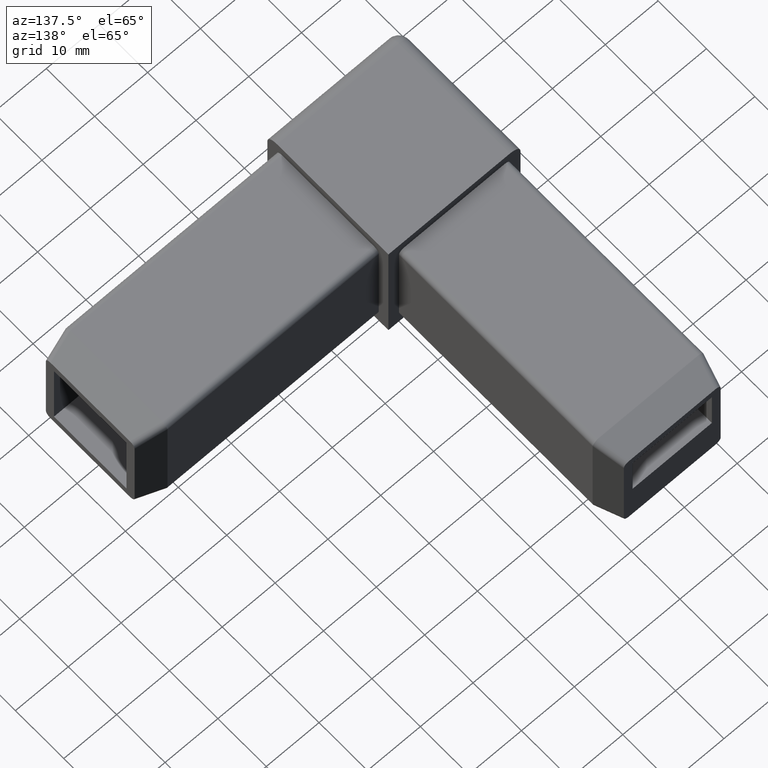
[diagram: clean part render]
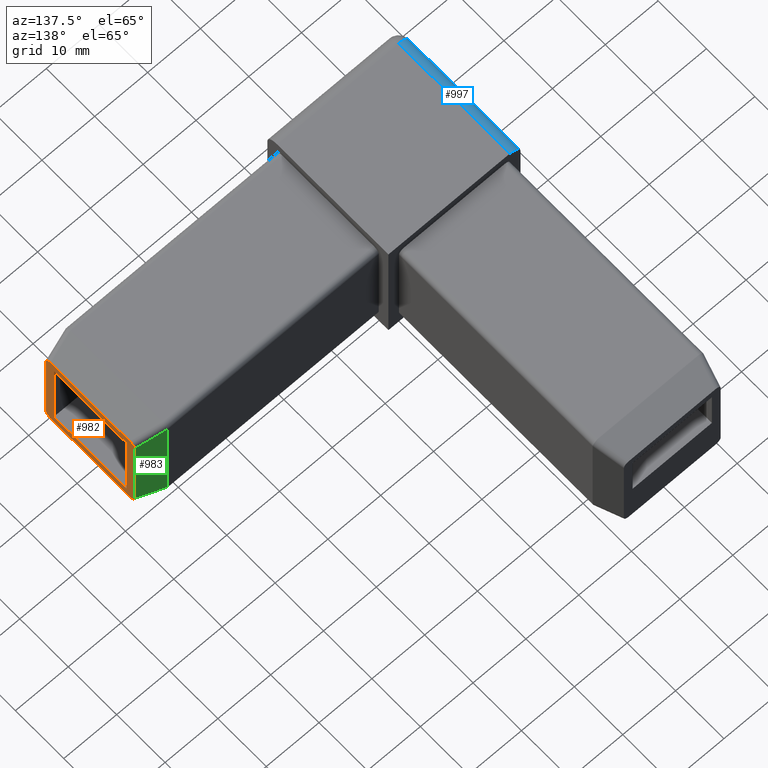
[diagram: same view with three faces highlighted in distinct colors, each labeled with its STEP entity id]
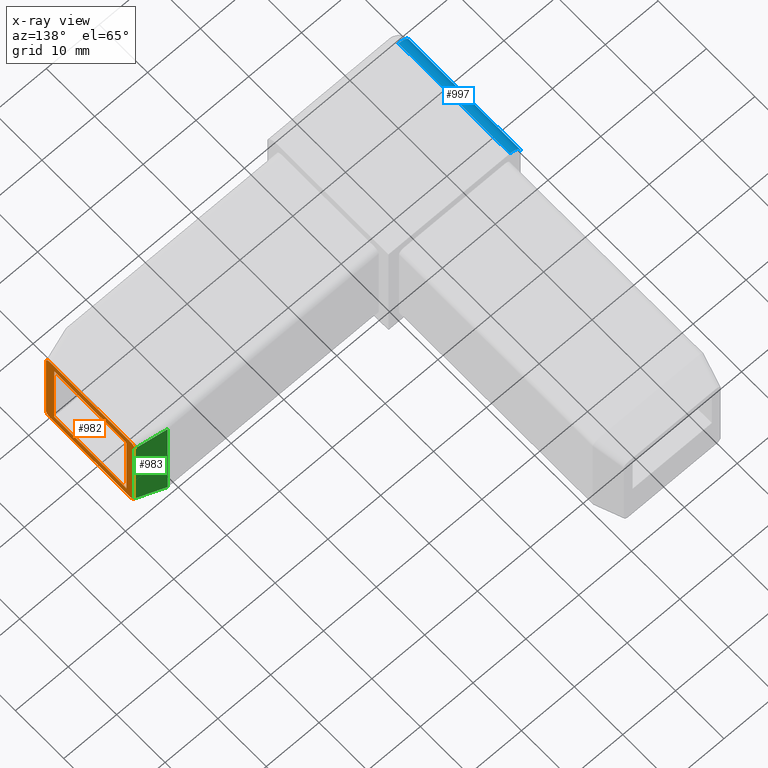
[diagram: x-ray of the same camera — body ghosted, the three highlighted faces saturated]
A machine part, auxiliary view with three faces highlighted in distinct colors.
The next image is the same camera in x-ray (body ghosted, the three faces saturated) — at least one of them is partly hidden behind the body in this view.
Their STEP definitions:

[orange] entity #982 — the highlighted planar face has unit normal (1, 0, 0).
#18=FACE_BOUND('',#174,.T.);
#55=ELLIPSE('',#1058,1.06938933015482,1.);
#59=ELLIPSE('',#1065,1.06938933015482,1.);
#60=ELLIPSE('',#1066,1.06938933015482,1.);
#61=ELLIPSE('',#1067,1.06938933015482,1.);
#117=FACE_OUTER_BOUND('',#173,.T.);
#173=EDGE_LOOP('',(#763,#764,#765,#766,#767,#768,#769,#770));
#174=EDGE_LOOP('',(#771,#772,#773,#774));
#218=LINE('',#1453,#313);
#223=LINE('',#1464,#318);
#226=LINE('',#1468,#321);
#227=LINE('',#1470,#322);
#258=LINE('',#1585,#353);
#259=LINE('',#1589,#354);
#260=LINE('',#1593,#355);
#261=LINE('',#1596,#356);
#313=VECTOR('',#1141,15.);
#318=VECTOR('',#1150,15.);
#321=VECTOR('',#1155,15.);
#322=VECTOR('',#1158,15.);
#353=VECTOR('',#1275,16.3886564231106);
#354=VECTOR('',#1278,16.3886564231106);
#355=VECTOR('',#1281,16.3886564231106);
#356=VECTOR('',#1284,16.3886564231106);
#404=VERTEX_POINT('',#1450);
#405=VERTEX_POINT('',#1452);
#408=VERTEX_POINT('',#1462);
#409=VERTEX_POINT('',#1463);
#443=VERTEX_POINT('',#1566);
#444=VERTEX_POINT('',#1568);
#450=VERTEX_POINT('',#1584);
#451=VERTEX_POINT('',#1586);
#452=VERTEX_POINT('',#1588);
#453=VERTEX_POINT('',#1590);
#454=VERTEX_POINT('',#1592);
#455=VERTEX_POINT('',#1594);
#502=EDGE_CURVE('',#405,#404,#218,.T.);
#507=EDGE_CURVE('',#408,#409,#223,.T.);
#510=EDGE_CURVE('',#409,#405,#226,.T.);
#511=EDGE_CURVE('',#404,#408,#227,.T.);
#559=EDGE_CURVE('',#443,#444,#55,.T.);
#567=EDGE_CURVE('',#450,#443,#258,.T.);
#568=EDGE_CURVE('',#451,#450,#59,.T.);
#569=EDGE_CURVE('',#452,#451,#259,.T.);
#570=EDGE_CURVE('',#453,#452,#60,.T.);
#571=EDGE_CURVE('',#454,#453,#260,.T.);
#572=EDGE_CURVE('',#455,#454,#61,.T.);
#573=EDGE_CURVE('',#444,#455,#261,.T.);
#763=ORIENTED_EDGE('',*,*,#559,.F.);
#764=ORIENTED_EDGE('',*,*,#567,.F.);
#765=ORIENTED_EDGE('',*,*,#568,.F.);
#766=ORIENTED_EDGE('',*,*,#569,.F.);
#767=ORIENTED_EDGE('',*,*,#570,.F.);
#768=ORIENTED_EDGE('',*,*,#571,.F.);
#769=ORIENTED_EDGE('',*,*,#572,.F.);
#770=ORIENTED_EDGE('',*,*,#573,.F.);
#771=ORIENTED_EDGE('',*,*,#502,.T.);
#772=ORIENTED_EDGE('',*,*,#511,.T.);
#773=ORIENTED_EDGE('',*,*,#507,.T.);
#774=ORIENTED_EDGE('',*,*,#510,.T.);
#940=PLANE('',#1064);
#982=ADVANCED_FACE('',(#117,#18),#940,.T.);
#1058=AXIS2_PLACEMENT_3D('',#1569,#1258,#1259);
#1064=AXIS2_PLACEMENT_3D('',#1583,#1273,#1274);
#1065=AXIS2_PLACEMENT_3D('',#1587,#1276,#1277);
#1066=AXIS2_PLACEMENT_3D('',#1591,#1279,#1280);
#1067=AXIS2_PLACEMENT_3D('',#1595,#1282,#1283);
#1141=DIRECTION('',(0.,1.,1.8503717077086E-16));
#1150=DIRECTION('',(0.,-1.,-2.96059473233375E-16));
#1155=DIRECTION('',(0.,2.96059473233375E-16,1.));
#1158=DIRECTION('',(0.,2.96059473233375E-16,-1.));
#1258=DIRECTION('center_axis',(-1.,0.,0.));
#1259=DIRECTION('ref_axis',(0.,0.707106781186546,-0.707106781186549));
#1273=DIRECTION('center_axis',(1.,0.,0.));
#1274=DIRECTION('ref_axis',(0.,0.,-1.));
#1275=DIRECTION('',(0.,0.,-1.));
#1276=DIRECTION('center_axis',(-1.,0.,0.));
#1277=DIRECTION('ref_axis',(0.,0.707106781186548,0.707106781186547));
#1278=DIRECTION('',(0.,1.,0.));
#1279=DIRECTION('center_axis',(-1.,0.,0.));
#1280=DIRECTION('ref_axis',(0.,-0.707106781186548,0.707106781186547));
#1281=DIRECTION('',(0.,0.,1.));
#1282=DIRECTION('center_axis',(-1.,0.,0.));
#1283=DIRECTION('ref_axis',(0.,-0.707106781186548,-0.707106781186547));
#1284=DIRECTION('',(0.,-1.,0.));
#1450=CARTESIAN_POINT('',(57.5,7.5,20.));
#1452=CARTESIAN_POINT('',(57.5,-7.49999999999999,20.));
#1453=CARTESIAN_POINT('',(57.5,3.75,20.));
#1462=CARTESIAN_POINT('',(57.5,7.5,5.));
#1463=CARTESIAN_POINT('',(57.5,-7.5,4.99999999999999));
#1464=CARTESIAN_POINT('',(57.5,-3.75,4.99999999999999));
#1468=CARTESIAN_POINT('',(57.5,-7.49999999999999,16.25));
#1470=CARTESIAN_POINT('',(57.5,7.5,8.75));
#1566=CARTESIAN_POINT('',(57.5,9.16025403784439,4.30567178844468));
#1568=CARTESIAN_POINT('',(57.5,8.19432821155533,3.33974596215561));
#1569=CARTESIAN_POINT('Origin',(57.5,8.12497785743431,4.3750221425657));
#1583=CARTESIAN_POINT('Origin',(57.5,0.,12.5));
#1584=CARTESIAN_POINT('',(57.5,9.16025403784439,20.6943282115553));
#1585=CARTESIAN_POINT('',(57.5,9.16025403784439,7.25));
#1586=CARTESIAN_POINT('',(57.5,8.19432821155532,21.6602540378444));
#1587=CARTESIAN_POINT('Origin',(57.5,8.12497785743431,20.6249778574343));
#1588=CARTESIAN_POINT('',(57.5,-8.19432821155532,21.6602540378444));
#1589=CARTESIAN_POINT('',(57.5,5.25,21.6602540378444));
#1590=CARTESIAN_POINT('',(57.5,-9.16025403784439,20.6943282115553));
#1591=CARTESIAN_POINT('Origin',(57.5,-8.12497785743431,20.6249778574343));
#1592=CARTESIAN_POINT('',(57.5,-9.16025403784439,4.30567178844468));
#1593=CARTESIAN_POINT('',(57.5,-9.16025403784439,17.75));
#1594=CARTESIAN_POINT('',(57.5,-8.19432821155532,3.33974596215561));
#1595=CARTESIAN_POINT('Origin',(57.5,-8.12497785743431,4.3750221425657));
#1596=CARTESIAN_POINT('',(57.5,-5.25,3.33974596215561));

[blue] entity #997 — the highlighted cylindrical surface (edge-blend (fillet) strip) has radius 2 mm, axis along (-0, -1, 0).
#29=CIRCLE('',#1095,2.);
#30=CIRCLE('',#1096,2.);
#87=CYLINDRICAL_SURFACE('',#1094,2.);
#132=FACE_OUTER_BOUND('',#189,.T.);
#189=EDGE_LOOP('',(#847,#848,#849,#850));
#282=LINE('',#1666,#377);
#283=LINE('',#1669,#378);
#377=VECTOR('',#1361,23.);
#378=VECTOR('',#1364,23.);
#474=VERTEX_POINT('',#1662);
#475=VERTEX_POINT('',#1663);
#476=VERTEX_POINT('',#1665);
#477=VERTEX_POINT('',#1667);
#606=EDGE_CURVE('',#474,#475,#29,.T.);
#607=EDGE_CURVE('',#475,#476,#282,.T.);
#608=EDGE_CURVE('',#476,#477,#30,.T.);
#609=EDGE_CURVE('',#477,#474,#283,.T.);
#847=ORIENTED_EDGE('',*,*,#606,.T.);
#848=ORIENTED_EDGE('',*,*,#607,.T.);
#849=ORIENTED_EDGE('',*,*,#608,.T.);
#850=ORIENTED_EDGE('',*,*,#609,.T.);
#997=ADVANCED_FACE('',(#132),#87,.T.);
#1094=AXIS2_PLACEMENT_3D('',#1661,#1357,#1358);
#1095=AXIS2_PLACEMENT_3D('',#1664,#1359,#1360);
#1096=AXIS2_PLACEMENT_3D('',#1668,#1362,#1363);
#1357=DIRECTION('center_axis',(-4.82705662880503E-16,-1.,0.));
#1358=DIRECTION('ref_axis',(-0.707106781186547,0.,0.707106781186548));
#1359=DIRECTION('center_axis',(1.24344978758018E-15,-1.,0.));
#1360=DIRECTION('ref_axis',(-0.707106781186547,0.,0.707106781186548));
#1361=DIRECTION('',(-4.82705662880503E-16,-1.,0.));
#1362=DIRECTION('center_axis',(1.11022302462516E-15,1.,0.));
#1363=DIRECTION('ref_axis',(-1.,1.11022302462516E-15,0.));
#1364=DIRECTION('',(4.82705662880503E-16,1.,0.));
#1661=CARTESIAN_POINT('Origin',(-10.5,6.35299278254886,23.));
#1662=CARTESIAN_POINT('',(-10.5,12.5,25.));
#1663=CARTESIAN_POINT('',(-12.5,12.5,23.));
#1664=CARTESIAN_POINT('Origin',(-10.5,12.5,23.));
#1665=CARTESIAN_POINT('',(-12.5,-10.5,23.));
#1666=CARTESIAN_POINT('',(-12.5,6.35299278254886,23.));
#1667=CARTESIAN_POINT('',(-10.5,-10.5,25.));
#1668=CARTESIAN_POINT('Origin',(-10.5,-10.5,23.));
#1669=CARTESIAN_POINT('',(-10.5,6.35299278254886,25.));

[green] entity #983 — the highlighted planar face has unit normal (0.2588, 0.9659, 0).
#57=ELLIPSE('',#1062,3.86370330515628,1.);
#62=ELLIPSE('',#1069,3.86370330515627,1.);
#118=FACE_OUTER_BOUND('',#175,.T.);
#175=EDGE_LOOP('',(#775,#776,#777,#778,#779,#780));
#254=LINE('',#1567,#349);
#258=LINE('',#1585,#353);
#262=LINE('',#1599,#357);
#263=LINE('',#1602,#358);
#349=VECTOR('',#1257,5.34470489476594);
#353=VECTOR('',#1275,16.3886564231106);
#357=VECTOR('',#1287,19.);
#358=VECTOR('',#1290,5.34470489476593);
#442=VERTEX_POINT('',#1565);
#443=VERTEX_POINT('',#1566);
#448=VERTEX_POINT('',#1577);
#450=VERTEX_POINT('',#1584);
#456=VERTEX_POINT('',#1598);
#457=VERTEX_POINT('',#1600);
#558=EDGE_CURVE('',#442,#443,#254,.T.);
#564=EDGE_CURVE('',#448,#442,#57,.T.);
#567=EDGE_CURVE('',#450,#443,#258,.T.);
#574=EDGE_CURVE('',#448,#456,#262,.T.);
#575=EDGE_CURVE('',#457,#456,#62,.T.);
#576=EDGE_CURVE('',#450,#457,#263,.T.);
#775=ORIENTED_EDGE('',*,*,#558,.F.);
#776=ORIENTED_EDGE('',*,*,#564,.F.);
#777=ORIENTED_EDGE('',*,*,#574,.T.);
#778=ORIENTED_EDGE('',*,*,#575,.F.);
#779=ORIENTED_EDGE('',*,*,#576,.F.);
#780=ORIENTED_EDGE('',*,*,#567,.T.);
#941=PLANE('',#1068);
#983=ADVANCED_FACE('',(#118),#941,.T.);
#1062=AXIS2_PLACEMENT_3D('',#1579,#1268,#1269);
#1068=AXIS2_PLACEMENT_3D('',#1597,#1285,#1286);
#1069=AXIS2_PLACEMENT_3D('',#1601,#1288,#1289);
#1257=DIRECTION('',(0.935113126531029,-0.250562807085731,0.250562807085732));
#1268=DIRECTION('center_axis',(-0.258819045102521,-0.965925826289068,0.));
#1269=DIRECTION('ref_axis',(-0.965925826289068,0.258819045102521,-1.79591789427697E-17));
#1275=DIRECTION('',(0.,0.,-1.));
#1285=DIRECTION('center_axis',(0.258819045102521,0.965925826289068,0.));
#1286=DIRECTION('ref_axis',(0.,0.,1.));
#1287=DIRECTION('',(0.,0.,1.));
#1288=DIRECTION('center_axis',(-0.258819045102521,-0.965925826289068,0.));
#1289=DIRECTION('ref_axis',(-0.965925826289068,0.258819045102521,0.));
#1290=DIRECTION('',(-0.93511312653103,0.250562807085732,0.250562807085731));
#1565=CARTESIAN_POINT('',(52.5020962954697,10.4994382993218,2.96648752696728));
#1566=CARTESIAN_POINT('',(57.5,9.16025403784439,4.30567178844468));
#1567=CARTESIAN_POINT('',(57.0769228481804,9.27361721901052,4.19230860727855));
#1577=CARTESIAN_POINT('',(52.5,10.5,3.));
#1579=CARTESIAN_POINT('Origin',(56.2320508075689,9.5,3.));
#1584=CARTESIAN_POINT('',(57.5,9.16025403784439,20.6943282115553));
#1585=CARTESIAN_POINT('',(57.5,9.16025403784439,7.25));
#1597=CARTESIAN_POINT('Origin',(55.,9.83012701892219,7.25));
#1598=CARTESIAN_POINT('',(52.5,10.5,22.));
#1599=CARTESIAN_POINT('',(52.5,10.5,7.25));
#1600=CARTESIAN_POINT('',(52.5020962954697,10.4994382993218,22.0335124730327));
#1601=CARTESIAN_POINT('Origin',(56.2320508075689,9.5,22.));
#1602=CARTESIAN_POINT('',(57.0769228481804,9.27361721901052,20.8076913927215));